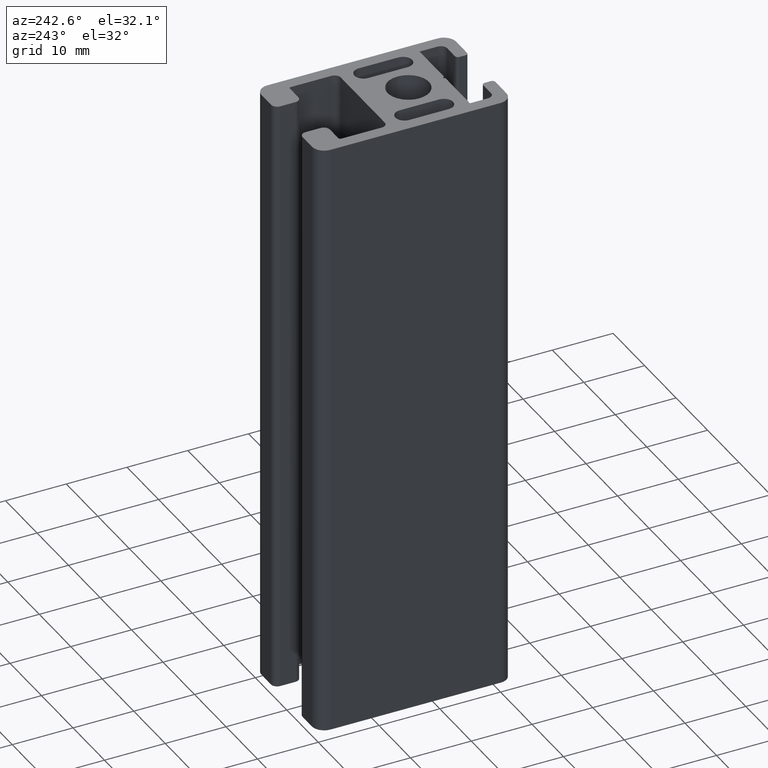
[diagram: clean part render]
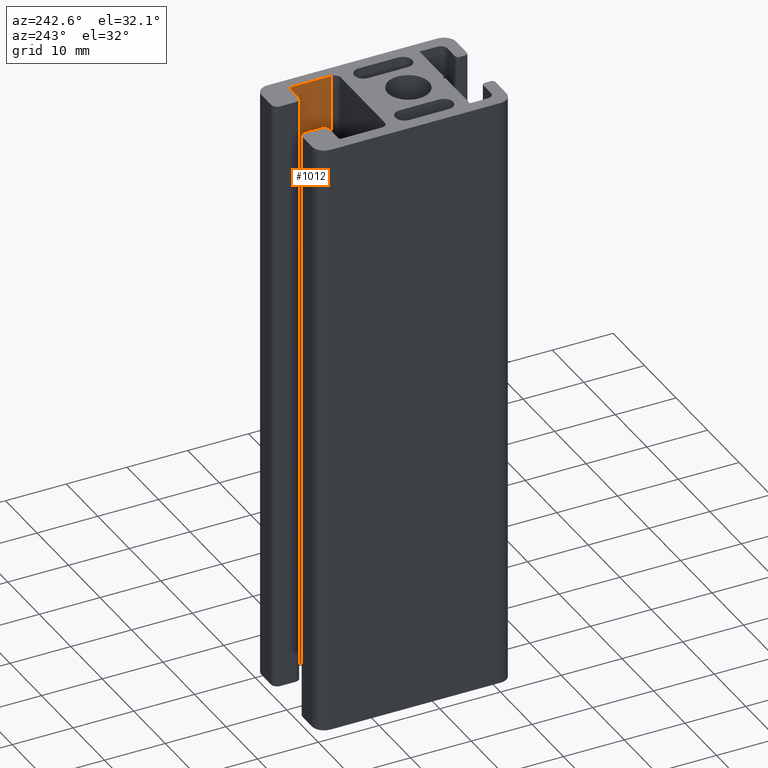
[diagram: same view with one face highlighted and labeled with its STEP entity id]
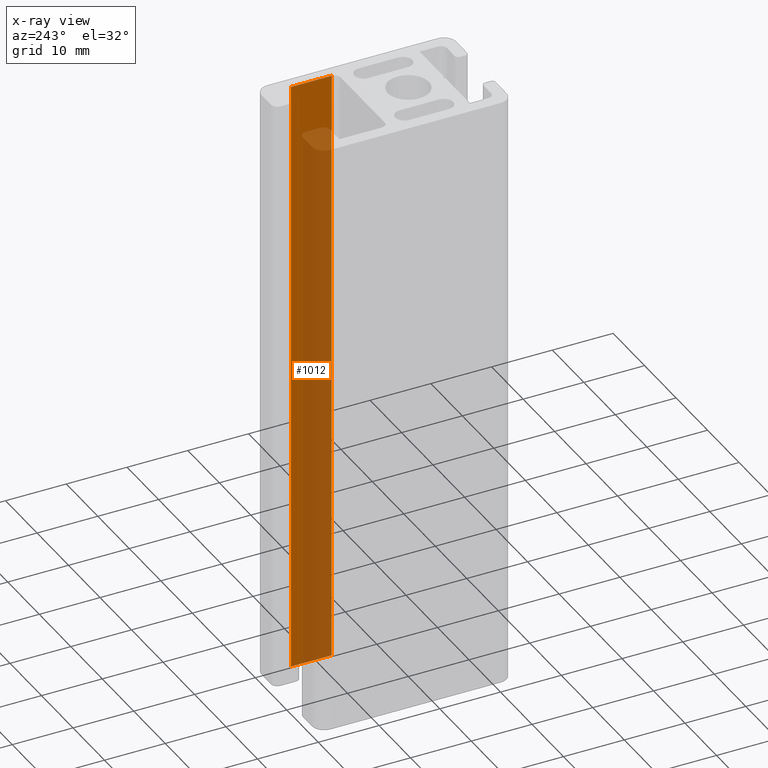
[diagram: x-ray of the same camera — body ghosted, the highlighted face saturated]
A machine part, auxiliary view. The second image highlights one B-rep face of the part: STEP entity #1012.
The next image is the same camera in x-ray: the body ghosted, the highlighted face saturated — about 67% of this face is hidden behind the body in this view.
In plain terms, the highlighted planar face has unit normal (1, 0, 0).
Its self-contained STEP definition (entity closure, byte-faithful):
#37=PLANE('',#1092);
#79=FACE_OUTER_BOUND('',#132,.T.);
#132=EDGE_LOOP('',(#773,#774,#775,#776));
#220=LINE('',#1609,#323);
#221=LINE('',#1613,#324);
#222=LINE('',#1615,#325);
#223=LINE('',#1616,#326);
#323=VECTOR('',#1302,100.);
#324=VECTOR('',#1307,6.70000144973492);
#325=VECTOR('',#1308,100.);
#326=VECTOR('',#1309,6.70000144973492);
#472=VERTEX_POINT('',#1606);
#473=VERTEX_POINT('',#1608);
#474=VERTEX_POINT('',#1612);
#475=VERTEX_POINT('',#1614);
#597=EDGE_CURVE('',#473,#472,#220,.T.);
#599=EDGE_CURVE('',#474,#472,#221,.T.);
#600=EDGE_CURVE('',#475,#474,#222,.T.);
#601=EDGE_CURVE('',#473,#475,#223,.T.);
#773=ORIENTED_EDGE('',*,*,#599,.F.);
#774=ORIENTED_EDGE('',*,*,#600,.F.);
#775=ORIENTED_EDGE('',*,*,#601,.F.);
#776=ORIENTED_EDGE('',*,*,#597,.T.);
#1012=ADVANCED_FACE('',(#79),#37,.F.);
#1092=AXIS2_PLACEMENT_3D('',#1611,#1305,#1306);
#1302=DIRECTION('',(0.,0.,1.));
#1305=DIRECTION('center_axis',(1.,1.6570489319358E-16,0.));
#1306=DIRECTION('ref_axis',(-1.77635683940025E-16,1.,0.));
#1307=DIRECTION('',(1.6570489319358E-16,-1.,0.));
#1308=DIRECTION('',(0.,0.,1.));
#1309=DIRECTION('',(-1.6570489319358E-16,1.,0.));
#1606=CARTESIAN_POINT('',(8.,8.49999800404716,100.));
#1608=CARTESIAN_POINT('',(8.,8.49999800404716,0.));
#1609=CARTESIAN_POINT('',(8.,8.49999800404716,0.));
#1611=CARTESIAN_POINT('Origin',(8.,8.49999800404716,0.));
#1612=CARTESIAN_POINT('',(8.,15.1999994537821,100.));
#1613=CARTESIAN_POINT('',(8.,6.24999900202358,100.));
#1614=CARTESIAN_POINT('',(8.,15.1999994537821,0.));
#1615=CARTESIAN_POINT('',(8.,15.1999994537821,0.));
#1616=CARTESIAN_POINT('',(8.,6.24999900202358,0.));